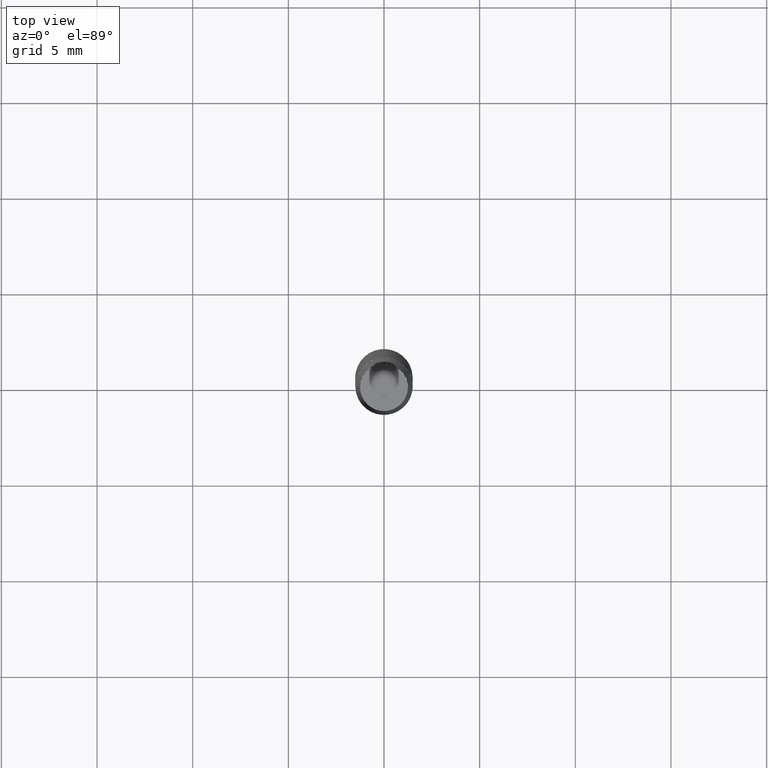
[diagram: clean part render]
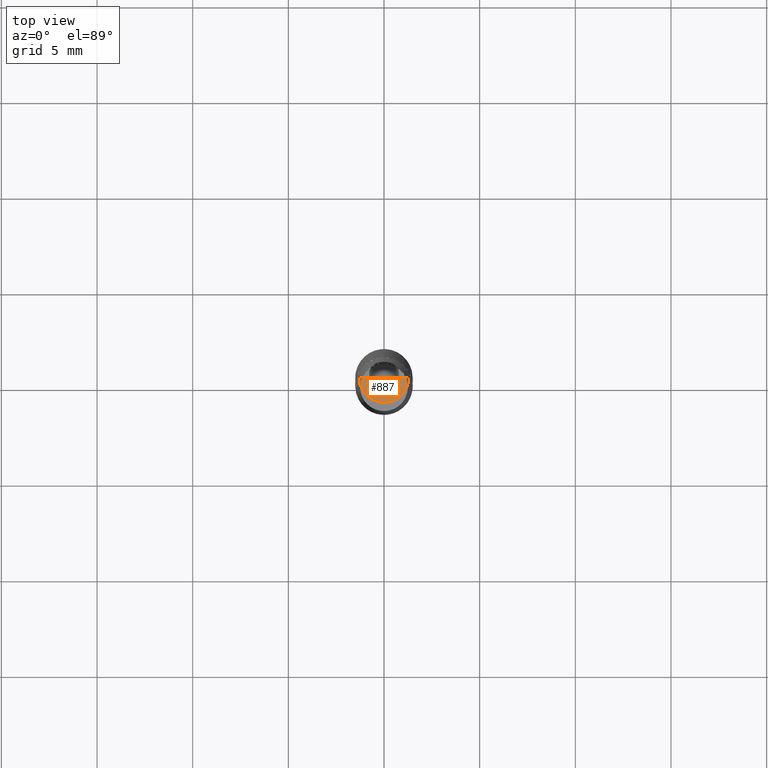
[diagram: same view with one face highlighted and labeled with its STEP entity id]
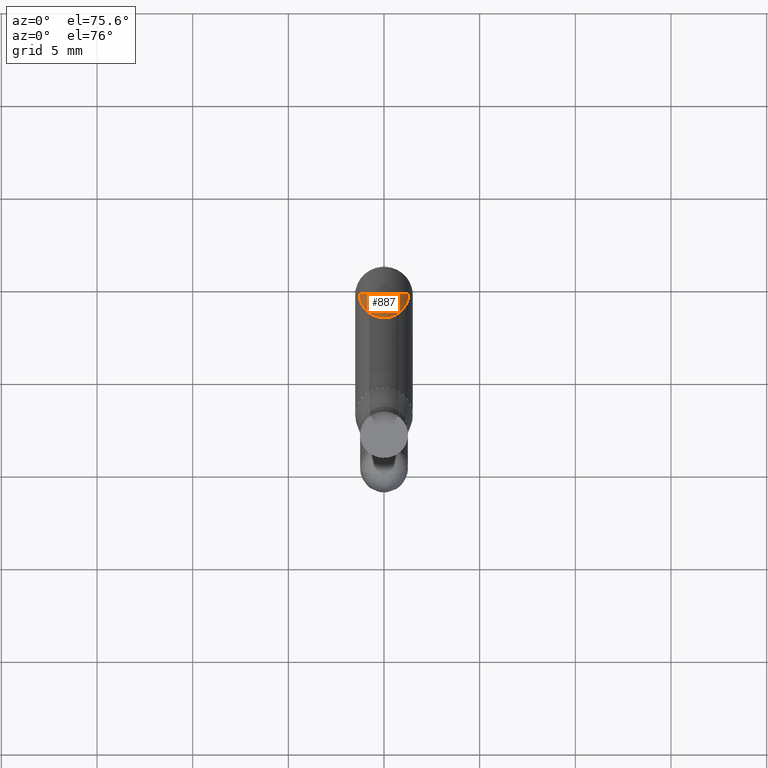
[diagram: same view with one face highlighted and labeled with its STEP entity id]
A machine part, top view. The second image highlights one B-rep face of the part: STEP entity #887.
A second angle (auxiliary view) of the same face is appended — the face is thin or edge-on in the first view.
In plain terms, the highlighted face is a freeform B-spline surface patch.
Its self-contained STEP definition (entity closure, byte-faithful):
#490=CARTESIAN_POINT('',(1.3,0.0,25.5));
#494=CARTESIAN_POINT('',(-1.3,0.0,25.5));
#495=CARTESIAN_POINT('',(0.0,0.0,25.5));
#508=CARTESIAN_POINT('',(-1.3,-1.3,25.5));
#509=CARTESIAN_POINT('',(0.0,-1.3,25.5));
#510=CARTESIAN_POINT('',(1.3,-1.3,25.5));
#872=(
BOUNDED_SURFACE()
B_SPLINE_SURFACE(1,2,(
(#494,#508,#509,#510,#490),
(#495,#495,#495,#495,#495)
), .UNSPECIFIED.,.F.,.F.,.F.)
B_SPLINE_SURFACE_WITH_KNOTS((2,2),(3,2,3),(
0.0,1.0),(
0.0,0.5,1.0), .UNSPECIFIED.)
GEOMETRIC_REPRESENTATION_ITEM()
RATIONAL_B_SPLINE_SURFACE(((1.0,0.707106781187,1.0,0.707106781187,1.0),
(1.0,0.707106781187,1.0,0.707106781187,1.0)
))
REPRESENTATION_ITEM('')
SURFACE()
);
#873=(
BOUNDED_CURVE()
B_SPLINE_CURVE(2,(#490,#510,#509,#508,#494),.UNSPECIFIED.,.F.,.F.)
B_SPLINE_CURVE_WITH_KNOTS((3,2,3),
(0.0,0.5,1.0),.UNSPECIFIED.)
CURVE()
GEOMETRIC_REPRESENTATION_ITEM()
RATIONAL_B_SPLINE_CURVE((1.0,0.707106781187,1.0,0.707106781187,1.0))
REPRESENTATION_ITEM('')
);
#874=(
BOUNDED_CURVE()
B_SPLINE_CURVE(1,(#494,#495),.UNSPECIFIED.,.F.,.F.)
B_SPLINE_CURVE_WITH_KNOTS((2,2),
(0.0,1.0),.UNSPECIFIED.)
CURVE()
GEOMETRIC_REPRESENTATION_ITEM()
RATIONAL_B_SPLINE_CURVE((1.0,1.0))
REPRESENTATION_ITEM('')
);
#875=(
BOUNDED_CURVE()
B_SPLINE_CURVE(1,(#495,#490),.UNSPECIFIED.,.F.,.F.)
B_SPLINE_CURVE_WITH_KNOTS((2,2),
(0.0,1.0),.UNSPECIFIED.)
CURVE()
GEOMETRIC_REPRESENTATION_ITEM()
RATIONAL_B_SPLINE_CURVE((1.0,1.0))
REPRESENTATION_ITEM('')
);
#876=VERTEX_POINT('',#490);
#877=VERTEX_POINT('',#494);
#878=VERTEX_POINT('',#495);
#879=EDGE_CURVE('',#876,#877,#873,.T.);
#880=EDGE_CURVE('',#877,#878,#874,.T.);
#881=EDGE_CURVE('',#878,#876,#875,.T.);
#882=ORIENTED_EDGE('',*,*,#879,.T.);
#883=ORIENTED_EDGE('',*,*,#880,.T.);
#884=ORIENTED_EDGE('',*,*,#881,.T.);
#885=EDGE_LOOP('',(#882,#883,#884));
#886=FACE_OUTER_BOUND('',#885,.T.);
#887=ADVANCED_FACE('',(#886),#872,.T.);